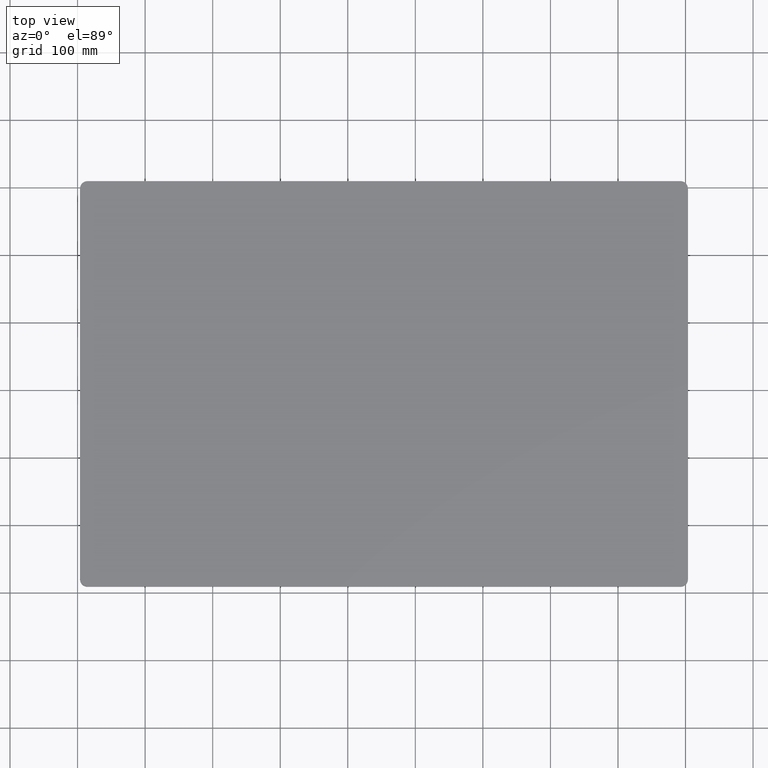
[diagram: clean part render]
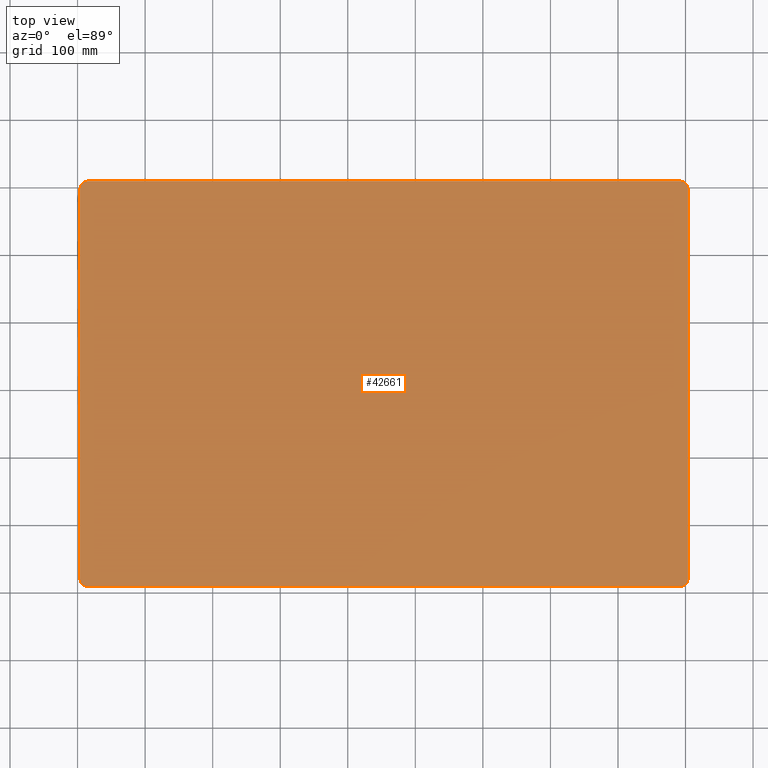
[diagram: same view with one face highlighted and labeled with its STEP entity id]
A machine part, top view. The second image highlights one B-rep face of the part: STEP entity #42661.
In plain terms, the highlighted planar face has unit normal (0, 0, 1).
Its self-contained STEP definition (entity closure, byte-faithful):
#1053 = ORIENTED_EDGE ( 'NONE', *, *, #36453, .T. ) ;
#2689 = FACE_OUTER_BOUND ( 'NONE', #11300, .T. ) ;
#3621 = CARTESIAN_POINT ( 'NONE',  ( 403.6333857621488050, 297.9691974502528637, -350.0013852687679901 ) ) ;
#3865 = DIRECTION ( 'NONE',  ( 0.000000000000000000, 1.000000000000000000, 0.000000000000000000 ) ) ;
#4632 = AXIS2_PLACEMENT_3D ( 'NONE', #23207, #46654, #3865 ) ;
#6778 = DIRECTION ( 'NONE',  ( 0.000000000000000000, -1.000000000000000000, 1.224646799147353207E-16 ) ) ;
#7280 = ORIENTED_EDGE ( 'NONE', *, *, #45984, .T. ) ;
#7802 = CIRCLE ( 'NONE', #42724, 11.00000000000001066 ) ;
#8864 = VERTEX_POINT ( 'NONE', #19428 ) ;
#9059 = CARTESIAN_POINT ( 'NONE',  ( 403.6333857621488050, 597.9691974502527501, -350.0013852687679901 ) ) ;
#9083 = DIRECTION ( 'NONE',  ( -1.000000000000000000, -0.000000000000000000, -0.000000000000000000 ) ) ;
#9361 = DIRECTION ( 'NONE',  ( -0.000000000000000000, 1.000000000000000000, -1.224646799147353207E-16 ) ) ;
#11300 = EDGE_LOOP ( 'NONE', ( #17615, #15933, #30151, #48252, #23891, #58599, #7280, #1053 ) ) ;
#11340 = CARTESIAN_POINT ( 'NONE',  ( 392.6333857621489187, 297.9691974502528637, -350.0013852687679901 ) ) ;
#11783 = VERTEX_POINT ( 'NONE', #38460 ) ;
#13097 = VERTEX_POINT ( 'NONE', #14179 ) ;
#14179 = CARTESIAN_POINT ( 'NONE',  ( -485.3666142378511950, 308.9691974502528637, -350.0013852687679901 ) ) ;
#15177 = EDGE_CURVE ( 'NONE', #52370, #17907, #32801, .T. ) ;
#15933 = ORIENTED_EDGE ( 'NONE', *, *, #59378, .T. ) ;
#17010 = DIRECTION ( 'NONE',  ( 0.000000000000000000, 1.224646799147353207E-16, 1.000000000000000000 ) ) ;
#17182 = DIRECTION ( 'NONE',  ( 0.000000000000000000, 1.000000000000000000, 0.000000000000000000 ) ) ;
#17615 = ORIENTED_EDGE ( 'NONE', *, *, #15177, .T. ) ;
#17907 = VERTEX_POINT ( 'NONE', #3621 ) ;
#18791 = CARTESIAN_POINT ( 'NONE',  ( 492.6333857621488619, 308.9691974502528637, -350.0013852687679901 ) ) ;
#19428 = CARTESIAN_POINT ( 'NONE',  ( -496.3666142378511381, -280.0308025497471363, -350.0013852687678764 ) ) ;
#19686 = DIRECTION ( 'NONE',  ( 0.000000000000000000, -1.000000000000000000, 1.224646799147353207E-16 ) ) ;
#20643 = AXIS2_PLACEMENT_3D ( 'NONE', #58916, #45486, #6778 ) ;
#23066 = EDGE_CURVE ( 'NONE', #11783, #13097, #57185, .T. ) ;
#23207 = CARTESIAN_POINT ( 'NONE',  ( -485.3666142378511950, 297.9691974502528637, -350.0013852687679901 ) ) ;
#23763 = CARTESIAN_POINT ( 'NONE',  ( -496.3666142378511381, 597.9691974502527501, -350.0013852687679901 ) ) ;
#23891 = ORIENTED_EDGE ( 'NONE', *, *, #55517, .T. ) ;
#24560 = CIRCLE ( 'NONE', #4632, 11.00000000000001066 ) ;
#25019 = VERTEX_POINT ( 'NONE', #37198 ) ;
#25070 = DIRECTION ( 'NONE',  ( 1.000000000000000000, 0.000000000000000000, 0.000000000000000000 ) ) ;
#28384 = VECTOR ( 'NONE', #9361, 1000.000000000000000 ) ;
#30151 = ORIENTED_EDGE ( 'NONE', *, *, #23066, .T. ) ;
#30411 = DIRECTION ( 'NONE',  ( 0.000000000000000000, 1.224646799147353207E-16, 1.000000000000000000 ) ) ;
#30744 = DIRECTION ( 'NONE',  ( 0.000000000000000000, 1.000000000000000000, 0.000000000000000000 ) ) ;
#30779 = DIRECTION ( 'NONE',  ( 0.000000000000000000, 1.000000000000000000, 0.000000000000000000 ) ) ;
#31553 = DIRECTION ( 'NONE',  ( 0.000000000000000000, 1.224646799147353207E-16, 1.000000000000000000 ) ) ;
#31985 = CARTESIAN_POINT ( 'NONE',  ( 392.6333857621489187, -280.0308025497471363, -350.0013852687678764 ) ) ;
#32801 = LINE ( 'NONE', #9059, #28384 ) ;
#32937 = EDGE_CURVE ( 'NONE', #13097, #40873, #24560, .T. ) ;
#33074 = AXIS2_PLACEMENT_3D ( 'NONE', #31985, #17010, #30779 ) ;
#33401 = LINE ( 'NONE', #23763, #38713 ) ;
#36453 = EDGE_CURVE ( 'NONE', #39753, #52370, #53055, .T. ) ;
#37021 = AXIS2_PLACEMENT_3D ( 'NONE', #11340, #30411, #30744 ) ;
#37198 = CARTESIAN_POINT ( 'NONE',  ( -485.3666142378509676, -291.0308025497471931, -350.0013852687678764 ) ) ;
#37526 = CARTESIAN_POINT ( 'NONE',  ( 403.6333857621488050, -280.0308025497471363, -350.0013852687678764 ) ) ;
#38460 = CARTESIAN_POINT ( 'NONE',  ( 392.6333857621489187, 308.9691974502528637, -350.0013852687679901 ) ) ;
#38713 = VECTOR ( 'NONE', #19686, 1000.000000000000000 ) ;
#39753 = VERTEX_POINT ( 'NONE', #59271 ) ;
#40873 = VERTEX_POINT ( 'NONE', #44008 ) ;
#41089 = PLANE ( 'NONE',  #20643 ) ;
#42661 = ADVANCED_FACE ( 'NONE', ( #2689 ), #41089, .T. ) ;
#42724 = AXIS2_PLACEMENT_3D ( 'NONE', #54685, #31553, #17182 ) ;
#44008 = CARTESIAN_POINT ( 'NONE',  ( -496.3666142378511381, 297.9691974502528637, -350.0013852687679901 ) ) ;
#45486 = DIRECTION ( 'NONE',  ( 0.000000000000000000, 1.224646799147353207E-16, 1.000000000000000000 ) ) ;
#45984 = EDGE_CURVE ( 'NONE', #25019, #39753, #57887, .T. ) ;
#46654 = DIRECTION ( 'NONE',  ( 0.000000000000000000, 1.224646799147353207E-16, 1.000000000000000000 ) ) ;
#48252 = ORIENTED_EDGE ( 'NONE', *, *, #32937, .T. ) ;
#48813 = CARTESIAN_POINT ( 'NONE',  ( 492.6333857621488619, -291.0308025497471931, -350.0013852687678764 ) ) ;
#52370 = VERTEX_POINT ( 'NONE', #37526 ) ;
#53055 = CIRCLE ( 'NONE', #33074, 10.99999999999989875 ) ;
#54685 = CARTESIAN_POINT ( 'NONE',  ( -485.3666142378509676, -280.0308025497471363, -350.0013852687678764 ) ) ;
#55517 = EDGE_CURVE ( 'NONE', #40873, #8864, #33401, .T. ) ;
#56855 = EDGE_CURVE ( 'NONE', #8864, #25019, #7802, .T. ) ;
#57185 = LINE ( 'NONE', #18791, #57337 ) ;
#57337 = VECTOR ( 'NONE', #9083, 1000.000000000000000 ) ;
#57887 = LINE ( 'NONE', #48813, #58697 ) ;
#58599 = ORIENTED_EDGE ( 'NONE', *, *, #56855, .T. ) ;
#58697 = VECTOR ( 'NONE', #25070, 1000.000000000000000 ) ;
#58916 = CARTESIAN_POINT ( 'NONE',  ( 492.6333857621488619, 597.9691974502527501, -350.0013852687679901 ) ) ;
#58966 = CIRCLE ( 'NONE', #37021, 10.99999999999995381 ) ;
#59271 = CARTESIAN_POINT ( 'NONE',  ( 392.6333857621489187, -291.0308025497470794, -350.0013852687678764 ) ) ;
#59378 = EDGE_CURVE ( 'NONE', #17907, #11783, #58966, .T. ) ;